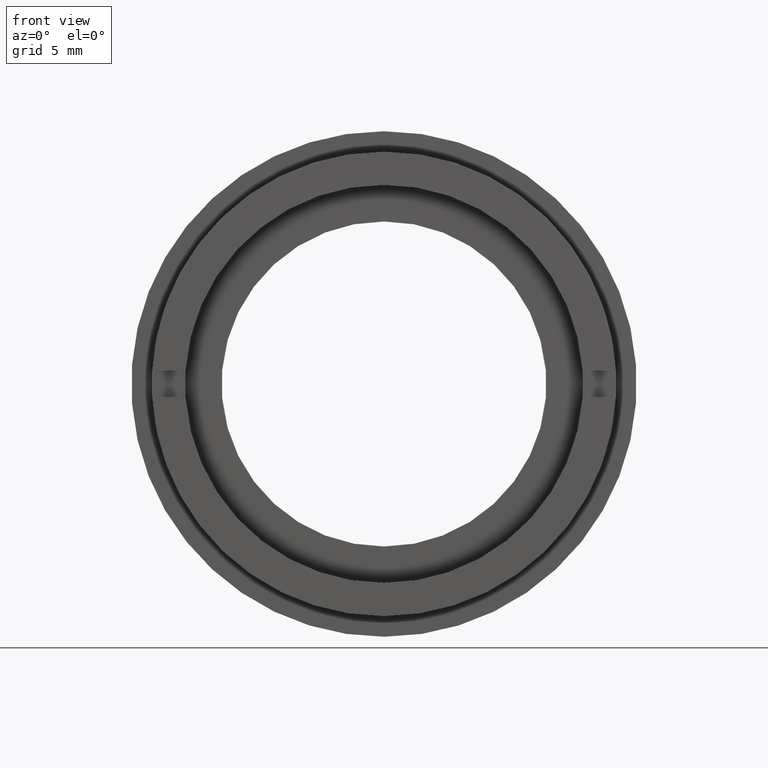
[diagram: clean part render]
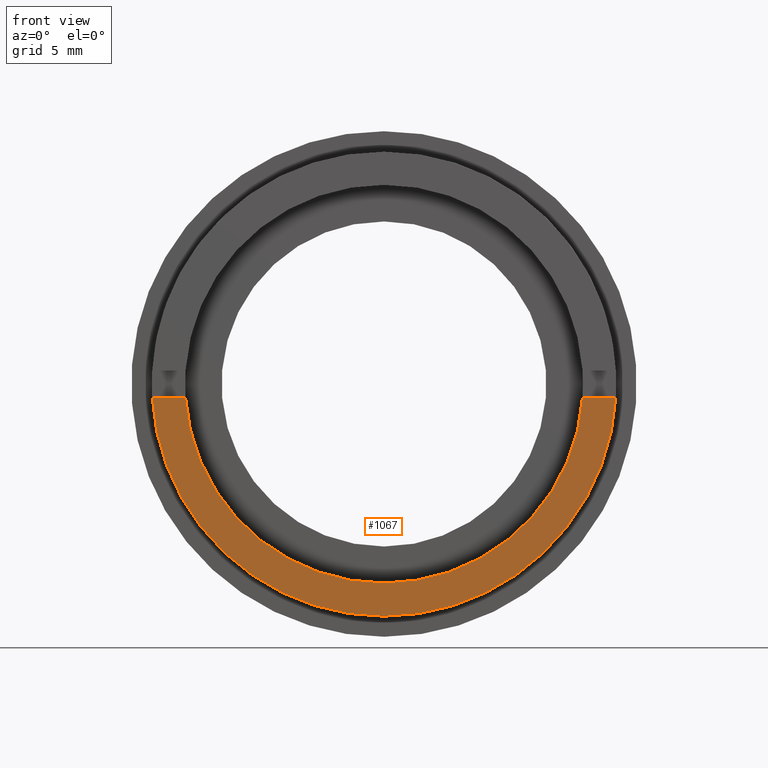
[diagram: same view with one face highlighted and labeled with its STEP entity id]
A machine part, front view. The second image highlights one B-rep face of the part: STEP entity #1067.
In plain terms, the highlighted planar face has unit normal (0, -1, 0).
Its self-contained STEP definition (entity closure, byte-faithful):
#25 = CARTESIAN_POINT ( 'NONE',  ( -17.49999999999999600, 0.0000000000000000000, -1.000000000000000000 ) ) ;
#78 = EDGE_CURVE ( 'NONE', #458, #1200, #668, .T. ) ;
#100 = FACE_OUTER_BOUND ( 'NONE', #1240, .T. ) ;
#104 = AXIS2_PLACEMENT_3D ( 'NONE', #1152, #568, #595 ) ;
#125 = VERTEX_POINT ( 'NONE', #721 ) ;
#149 = EDGE_CURVE ( 'NONE', #722, #979, #1153, .T. ) ;
#160 = EDGE_CURVE ( 'NONE', #125, #1200, #771, .T. ) ;
#220 = AXIS2_PLACEMENT_3D ( 'NONE', #794, #795, #793 ) ;
#243 = CIRCLE ( 'NONE', #220, 17.49999999999999600 ) ;
#263 = CARTESIAN_POINT ( 'NONE',  ( 14.96662954709576000, 0.0000000000000000000, -0.9999999999999943400 ) ) ;
#301 = CARTESIAN_POINT ( 'NONE',  ( -14.96662954709576400, 0.0000000000000000000, -0.9999999999999945600 ) ) ;
#337 = ORIENTED_EDGE ( 'NONE', *, *, #149, .F. ) ;
#360 = DIRECTION ( 'NONE',  ( 1.000000000000000000, 0.0000000000000000000, 0.0000000000000000000 ) ) ;
#371 = CIRCLE ( 'NONE', #799, 14.99999999999999600 ) ;
#425 = CARTESIAN_POINT ( 'NONE',  ( 17.47140520965614400, 0.0000000000000000000, -1.000000000000000000 ) ) ;
#458 = VERTEX_POINT ( 'NONE', #1059 ) ;
#489 = EDGE_CURVE ( 'NONE', #979, #1252, #716, .T. ) ;
#568 = DIRECTION ( 'NONE',  ( 0.0000000000000000000, -1.000000000000000000, 0.0000000000000000000 ) ) ;
#595 = DIRECTION ( 'NONE',  ( 0.0000000000000000000, -0.0000000000000000000, -1.000000000000000000 ) ) ;
#607 = CARTESIAN_POINT ( 'NONE',  ( 0.0000000000000000000, 0.0000000000000000000, 0.0000000000000000000 ) ) ;
#657 = EDGE_CURVE ( 'NONE', #1252, #458, #243, .T. ) ;
#667 = CARTESIAN_POINT ( 'NONE',  ( 2.143131898507867900E-015, 0.0000000000000000000, -17.49999999999999600 ) ) ;
#668 = LINE ( 'NONE', #25, #806 ) ;
#716 = CIRCLE ( 'NONE', #767, 17.49999999999999600 ) ;
#721 = CARTESIAN_POINT ( 'NONE',  ( 1.836970198721029200E-015, 0.0000000000000000000, -14.99999999999999600 ) ) ;
#722 = VERTEX_POINT ( 'NONE', #263 ) ;
#750 = DIRECTION ( 'NONE',  ( -0.0000000000000000000, 1.000000000000000000, -0.0000000000000000000 ) ) ;
#759 = CARTESIAN_POINT ( 'NONE',  ( 0.0000000000000000000, 0.0000000000000000000, 0.0000000000000000000 ) ) ;
#760 = DIRECTION ( 'NONE',  ( 1.000000000000000000, 0.0000000000000000000, 0.0000000000000000000 ) ) ;
#767 = AXIS2_PLACEMENT_3D ( 'NONE', #1208, #1213, #1215 ) ;
#771 = CIRCLE ( 'NONE', #1314, 14.99999999999999600 ) ;
#793 = DIRECTION ( 'NONE',  ( 0.0000000000000000000, 0.0000000000000000000, 1.000000000000000000 ) ) ;
#794 = CARTESIAN_POINT ( 'NONE',  ( 0.0000000000000000000, 0.0000000000000000000, 0.0000000000000000000 ) ) ;
#795 = DIRECTION ( 'NONE',  ( -0.0000000000000000000, 1.000000000000000000, -0.0000000000000000000 ) ) ;
#799 = AXIS2_PLACEMENT_3D ( 'NONE', #759, #750, #1005 ) ;
#806 = VECTOR ( 'NONE', #360, 1000.000000000000000 ) ;
#852 = DIRECTION ( 'NONE',  ( -0.0000000000000000000, 1.000000000000000000, -0.0000000000000000000 ) ) ;
#979 = VERTEX_POINT ( 'NONE', #425 ) ;
#984 = ORIENTED_EDGE ( 'NONE', *, *, #78, .F. ) ;
#1001 = EDGE_CURVE ( 'NONE', #722, #125, #371, .T. ) ;
#1005 = DIRECTION ( 'NONE',  ( 0.0000000000000000000, 0.0000000000000000000, 1.000000000000000000 ) ) ;
#1007 = ORIENTED_EDGE ( 'NONE', *, *, #657, .F. ) ;
#1041 = ORIENTED_EDGE ( 'NONE', *, *, #1001, .T. ) ;
#1059 = CARTESIAN_POINT ( 'NONE',  ( -17.47140520965614400, 0.0000000000000000000, -1.000000000000000000 ) ) ;
#1067 = ADVANCED_FACE ( 'NONE', ( #100 ), #1086, .T. ) ;
#1086 = PLANE ( 'NONE',  #104 ) ;
#1110 = ORIENTED_EDGE ( 'NONE', *, *, #160, .T. ) ;
#1152 = CARTESIAN_POINT ( 'NONE',  ( -17.49999999999999600, 0.0000000000000000000, 0.0000000000000000000 ) ) ;
#1153 = LINE ( 'NONE', #1210, #1310 ) ;
#1200 = VERTEX_POINT ( 'NONE', #301 ) ;
#1208 = CARTESIAN_POINT ( 'NONE',  ( 0.0000000000000000000, 0.0000000000000000000, 0.0000000000000000000 ) ) ;
#1210 = CARTESIAN_POINT ( 'NONE',  ( -17.49999999999999600, 0.0000000000000000000, -1.000000000000000000 ) ) ;
#1213 = DIRECTION ( 'NONE',  ( -0.0000000000000000000, 1.000000000000000000, -0.0000000000000000000 ) ) ;
#1215 = DIRECTION ( 'NONE',  ( 0.0000000000000000000, 0.0000000000000000000, 1.000000000000000000 ) ) ;
#1240 = EDGE_LOOP ( 'NONE', ( #984, #1007, #1302, #337, #1041, #1110 ) ) ;
#1252 = VERTEX_POINT ( 'NONE', #667 ) ;
#1302 = ORIENTED_EDGE ( 'NONE', *, *, #489, .F. ) ;
#1310 = VECTOR ( 'NONE', #760, 1000.000000000000000 ) ;
#1314 = AXIS2_PLACEMENT_3D ( 'NONE', #607, #852, #1336 ) ;
#1336 = DIRECTION ( 'NONE',  ( 0.0000000000000000000, 0.0000000000000000000, 1.000000000000000000 ) ) ;